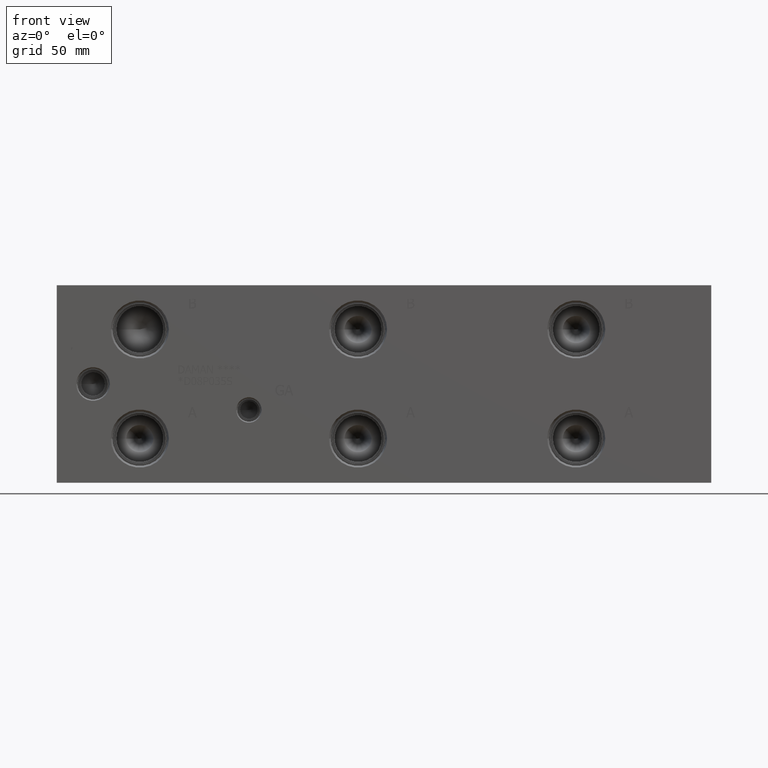
[diagram: clean part render]
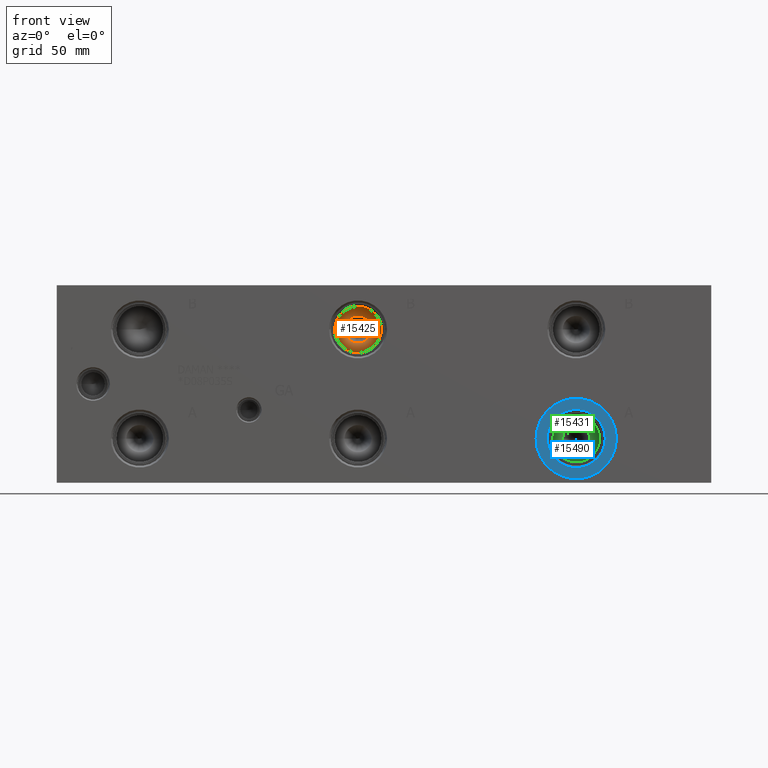
[diagram: same view with three faces highlighted in distinct colors, each labeled with its STEP entity id]
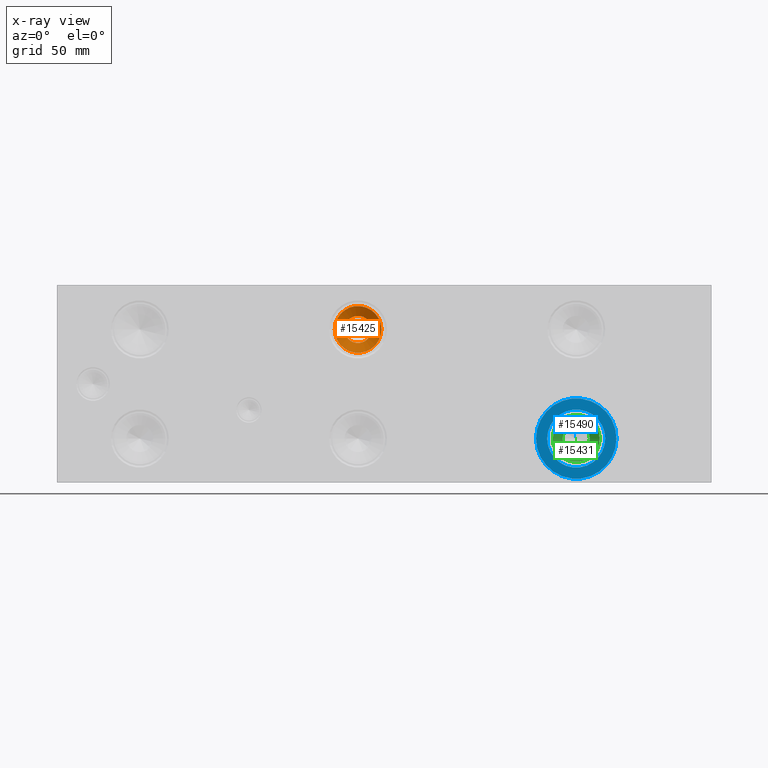
[diagram: x-ray of the same camera — body ghosted, the three highlighted faces saturated]
A machine part, front view with three faces highlighted in distinct colors.
The next image is the same camera in x-ray (body ghosted, the three faces saturated) — at least one of them is partly hidden behind the body in this view.
Their STEP definitions:

[orange] entity #15425 — the highlighted conical surface has half-angle 60 deg.
#156=CONICAL_SURFACE('',#16153,7.14375,1.0471975511966);
#513=CIRCLE('',#16154,14.2875);
#514=CIRCLE('',#16155,8.29239320143379);
#515=CIRCLE('',#16156,14.2875);
#2005=FACE_OUTER_BOUND('',#2900,.T.);
#2900=EDGE_LOOP('',(#12654,#12655,#12656,#12657,#12658));
#4354=LINE('',#25997,#5681);
#5681=VECTOR('',#18844,7.14375);
#6953=VERTEX_POINT('',#25993);
#6954=VERTEX_POINT('',#25994);
#6955=VERTEX_POINT('',#25996);
#8971=EDGE_CURVE('',#6953,#6954,#513,.T.);
#8972=EDGE_CURVE('',#6954,#6955,#4354,.T.);
#8973=EDGE_CURVE('',#6955,#6955,#514,.T.);
#8974=EDGE_CURVE('',#6954,#6953,#515,.T.);
#12654=ORIENTED_EDGE('',*,*,#8971,.T.);
#12655=ORIENTED_EDGE('',*,*,#8972,.T.);
#12656=ORIENTED_EDGE('',*,*,#8973,.F.);
#12657=ORIENTED_EDGE('',*,*,#8972,.F.);
#12658=ORIENTED_EDGE('',*,*,#8974,.T.);
#15425=ADVANCED_FACE('',(#2005),#156,.F.);
#16153=AXIS2_PLACEMENT_3D('',#25992,#18840,#18841);
#16154=AXIS2_PLACEMENT_3D('',#25995,#18842,#18843);
#16155=AXIS2_PLACEMENT_3D('',#25998,#18845,#18846);
#16156=AXIS2_PLACEMENT_3D('',#25999,#18847,#18848);
#18840=DIRECTION('center_axis',(0.,-1.,0.));
#18841=DIRECTION('ref_axis',(1.,0.,0.));
#18842=DIRECTION('center_axis',(0.,-1.,0.));
#18843=DIRECTION('ref_axis',(1.,0.,0.));
#18844=DIRECTION('',(0.866025403784438,0.5,1.06057523872491E-16));
#18845=DIRECTION('center_axis',(0.,-1.,0.));
#18846=DIRECTION('ref_axis',(1.,0.,0.));
#18847=DIRECTION('center_axis',(0.,-1.,0.));
#18848=DIRECTION('ref_axis',(1.,0.,0.));
#25992=CARTESIAN_POINT('Origin',(184.15,36.7715359855234,93.6752));
#25993=CARTESIAN_POINT('',(198.4375,32.64709,93.6752));
#25994=CARTESIAN_POINT('',(169.8625,32.64709,93.6752));
#25995=CARTESIAN_POINT('Origin',(184.15,32.64709,93.6752));
#25996=CARTESIAN_POINT('',(175.857606798566,36.1083665239728,93.6752));
#25997=CARTESIAN_POINT('',(177.00625,36.7715359855234,93.6752));
#25998=CARTESIAN_POINT('Origin',(184.15,36.1083665239728,93.6752));
#25999=CARTESIAN_POINT('Origin',(184.15,32.64709,93.6752));

[blue] entity #15490 — the highlighted planar face has unit normal (0, -1, 0).
#601=CIRCLE('',#16307,24.5618);
#602=CIRCLE('',#16308,24.5618);
#603=CIRCLE('',#16309,17.7546);
#1368=FACE_BOUND('',#2975,.T.);
#2070=FACE_OUTER_BOUND('',#2974,.T.);
#2974=EDGE_LOOP('',(#12950,#12951));
#2975=EDGE_LOOP('',(#12952));
#7046=VERTEX_POINT('',#26295);
#7047=VERTEX_POINT('',#26296);
#7048=VERTEX_POINT('',#26299);
#9115=EDGE_CURVE('',#7046,#7047,#601,.T.);
#9116=EDGE_CURVE('',#7047,#7046,#602,.T.);
#9117=EDGE_CURVE('',#7048,#7048,#603,.T.);
#12950=ORIENTED_EDGE('',*,*,#9115,.T.);
#12951=ORIENTED_EDGE('',*,*,#9116,.T.);
#12952=ORIENTED_EDGE('',*,*,#9117,.F.);
#14304=PLANE('',#16306);
#15490=ADVANCED_FACE('',(#2070,#1368),#14304,.T.);
#16306=AXIS2_PLACEMENT_3D('',#26294,#19202,#19203);
#16307=AXIS2_PLACEMENT_3D('',#26297,#19204,#19205);
#16308=AXIS2_PLACEMENT_3D('',#26298,#19206,#19207);
#16309=AXIS2_PLACEMENT_3D('',#26300,#19208,#19209);
#19202=DIRECTION('center_axis',(0.,-1.,0.));
#19203=DIRECTION('ref_axis',(1.,0.,0.));
#19204=DIRECTION('center_axis',(0.,-1.,0.));
#19205=DIRECTION('ref_axis',(1.,0.,0.));
#19206=DIRECTION('center_axis',(0.,-1.,0.));
#19207=DIRECTION('ref_axis',(1.,0.,0.));
#19208=DIRECTION('center_axis',(0.,-1.,0.));
#19209=DIRECTION('ref_axis',(1.,0.,0.));
#26294=CARTESIAN_POINT('Origin',(317.5,0.7874,26.9748));
#26295=CARTESIAN_POINT('',(342.0618,0.7874,26.9748));
#26296=CARTESIAN_POINT('',(292.9382,0.7874,26.9748));
#26297=CARTESIAN_POINT('Origin',(317.5,0.7874,26.9748));
#26298=CARTESIAN_POINT('Origin',(317.5,0.7874,26.9748));
#26299=CARTESIAN_POINT('',(299.7454,0.7874,26.9748));
#26300=CARTESIAN_POINT('Origin',(317.5,0.7874,26.9748));

[green] entity #15431 — the highlighted conical surface has half-angle 60 deg.
#159=CONICAL_SURFACE('',#16171,7.14375,1.0471975511966);
#525=CIRCLE('',#16172,14.2875);
#526=CIRCLE('',#16173,8.29239320143379);
#527=CIRCLE('',#16174,14.2875);
#2011=FACE_OUTER_BOUND('',#2906,.T.);
#2906=EDGE_LOOP('',(#12684,#12685,#12686,#12687,#12688));
#4360=LINE('',#26033,#5687);
#5687=VECTOR('',#18886,7.14375);
#6965=VERTEX_POINT('',#26029);
#6966=VERTEX_POINT('',#26030);
#6967=VERTEX_POINT('',#26032);
#8989=EDGE_CURVE('',#6965,#6966,#525,.T.);
#8990=EDGE_CURVE('',#6966,#6967,#4360,.T.);
#8991=EDGE_CURVE('',#6967,#6967,#526,.T.);
#8992=EDGE_CURVE('',#6966,#6965,#527,.T.);
#12684=ORIENTED_EDGE('',*,*,#8989,.T.);
#12685=ORIENTED_EDGE('',*,*,#8990,.T.);
#12686=ORIENTED_EDGE('',*,*,#8991,.F.);
#12687=ORIENTED_EDGE('',*,*,#8990,.F.);
#12688=ORIENTED_EDGE('',*,*,#8992,.T.);
#15431=ADVANCED_FACE('',(#2011),#159,.F.);
#16171=AXIS2_PLACEMENT_3D('',#26028,#18882,#18883);
#16172=AXIS2_PLACEMENT_3D('',#26031,#18884,#18885);
#16173=AXIS2_PLACEMENT_3D('',#26034,#18887,#18888);
#16174=AXIS2_PLACEMENT_3D('',#26035,#18889,#18890);
#18882=DIRECTION('center_axis',(0.,-1.,0.));
#18883=DIRECTION('ref_axis',(1.,0.,0.));
#18884=DIRECTION('center_axis',(0.,-1.,0.));
#18885=DIRECTION('ref_axis',(1.,0.,0.));
#18886=DIRECTION('',(0.866025403784438,0.5,1.06057523872491E-16));
#18887=DIRECTION('center_axis',(0.,-1.,0.));
#18888=DIRECTION('ref_axis',(1.,0.,0.));
#18889=DIRECTION('center_axis',(0.,-1.,0.));
#18890=DIRECTION('ref_axis',(1.,0.,0.));
#26028=CARTESIAN_POINT('Origin',(317.5,36.7715359855234,26.9748));
#26029=CARTESIAN_POINT('',(331.7875,32.64709,26.9748));
#26030=CARTESIAN_POINT('',(303.2125,32.64709,26.9748));
#26031=CARTESIAN_POINT('Origin',(317.5,32.64709,26.9748));
#26032=CARTESIAN_POINT('',(309.207606798566,36.1083665239728,26.9748));
#26033=CARTESIAN_POINT('',(310.35625,36.7715359855234,26.9748));
#26034=CARTESIAN_POINT('Origin',(317.5,36.1083665239728,26.9748));
#26035=CARTESIAN_POINT('Origin',(317.5,32.64709,26.9748));